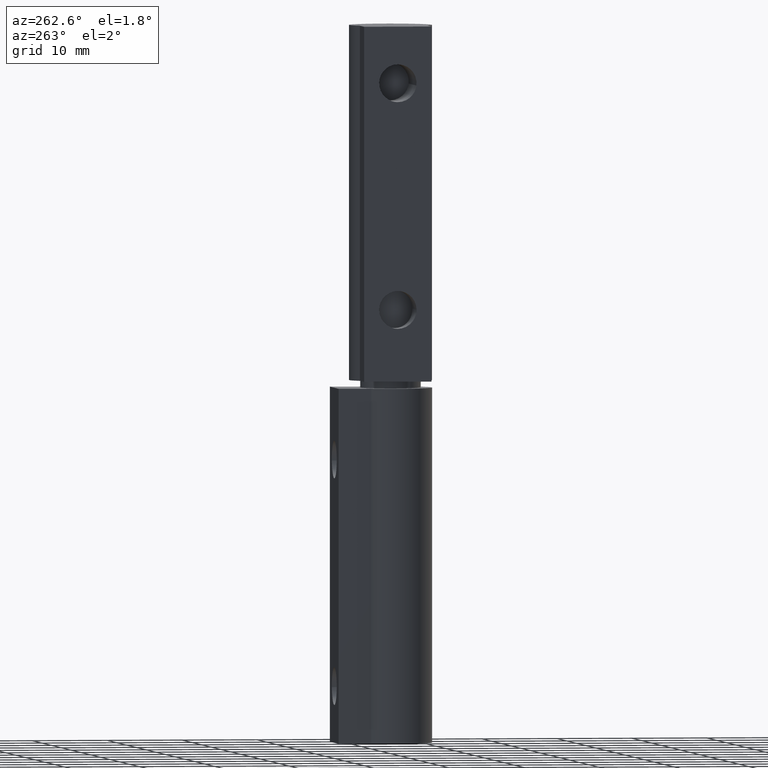
[diagram: clean part render]
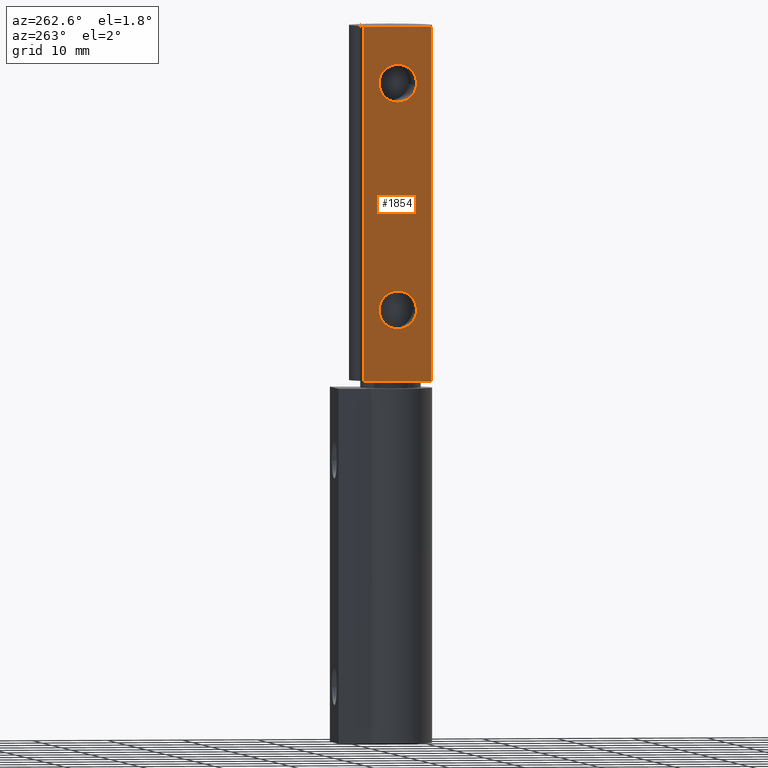
[diagram: same view with one face highlighted and labeled with its STEP entity id]
A machine part, auxiliary view. The second image highlights one B-rep face of the part: STEP entity #1854.
In plain terms, the highlighted face is a freeform B-spline surface patch.
Its self-contained STEP definition (entity closure, byte-faithful):
#1084=CARTESIAN_POINT('',(-7.500000356230890,-2.482523933808453,87.204918555247957));
#1085=VERTEX_POINT('',#1084);
#1091=CARTESIAN_POINT('',(-7.500000356230890,0.0,90.000004274769438));
#1092=VERTEX_POINT('',#1091);
#1093=CARTESIAN_POINT('',(-7.500000356230890,-2.482523933808453,87.204918555247957));
#1094=CARTESIAN_POINT('',(-7.500000356230890,-2.500000118743641,87.351943849742142));
#1095=CARTESIAN_POINT('',(-7.500000356230890,-2.500000118743640,87.500004156025796));
#1096=CARTESIAN_POINT('',(-7.500000356230891,-2.500000118743641,90.000004274769438));
#1097=CARTESIAN_POINT('',(-7.500000356230890,0.0,90.000004274769438));
#1105=(BOUNDED_CURVE()B_SPLINE_CURVE(2,(#1093,#1094,#1095,#1096,#1097),.UNSPECIFIED.,.F.,.U.)B_SPLINE_CURVE_WITH_KNOTS((3,2,3),(0.229562473499289,0.250000000000000,0.500000000000000),.UNSPECIFIED.)CURVE()GEOMETRIC_REPRESENTATION_ITEM()RATIONAL_B_SPLINE_CURVE((0.956026754155830,0.976055948314487,1.0,0.707106781186547,1.0))REPRESENTATION_ITEM(''));
#1106=EDGE_CURVE('',#1085,#1092,#1105,.T.);
#1108=CARTESIAN_POINT('',(-7.500000356230890,2.495337114558050,87.652625512419036));
#1109=VERTEX_POINT('',#1108);
#1110=CARTESIAN_POINT('',(-7.500000356230890,0.0,90.000004274769438));
#1111=CARTESIAN_POINT('',(-7.500000356230890,2.351765278387383,90.000004274769424));
#1112=CARTESIAN_POINT('',(-7.500000356230891,2.495337114558050,87.652625512419036));
#1120=(BOUNDED_CURVE()B_SPLINE_CURVE(2,(#1110,#1111,#1112),.UNSPECIFIED.,.F.,.U.)B_SPLINE_CURVE_WITH_KNOTS((3,3),(0.500000000000000,0.739332962199514),.UNSPECIFIED.)CURVE()GEOMETRIC_REPRESENTATION_ITEM()RATIONAL_B_SPLINE_CURVE((1.0,0.719603993332903,0.976072041582215))REPRESENTATION_ITEM(''));
#1121=EDGE_CURVE('',#1092,#1109,#1120,.T.);
#1195=CARTESIAN_POINT('',(-7.500000356230890,0.0,85.000004037282153));
#1196=VERTEX_POINT('',#1195);
#1197=CARTESIAN_POINT('',(-7.500000356230890,2.495337114558051,87.652625512419036));
#1198=CARTESIAN_POINT('',(-7.500000356230890,2.500000118743640,87.576386068208052));
#1199=CARTESIAN_POINT('',(-7.500000356230890,2.500000118743640,87.500004156025796));
#1200=CARTESIAN_POINT('',(-7.500000356230891,2.500000118743641,85.000004037282153));
#1201=CARTESIAN_POINT('',(-7.500000356230890,0.0,85.000004037282153));
#1209=(BOUNDED_CURVE()B_SPLINE_CURVE(2,(#1197,#1198,#1199,#1200,#1201),.UNSPECIFIED.,.F.,.U.)B_SPLINE_CURVE_WITH_KNOTS((3,2,3),(0.739332962199515,0.750000000000000,1.0),.UNSPECIFIED.)CURVE()GEOMETRIC_REPRESENTATION_ITEM()RATIONAL_B_SPLINE_CURVE((0.976072041582217,0.987502787853645,1.0,0.707106781186547,1.0))REPRESENTATION_ITEM(''));
#1210=EDGE_CURVE('',#1109,#1196,#1209,.T.);
#1212=CARTESIAN_POINT('',(-7.500000356230890,0.0,85.000004037282153));
#1213=CARTESIAN_POINT('',(-7.500000356230891,-2.220436420127107,85.000004037282153));
#1214=CARTESIAN_POINT('',(-7.500000356230890,-2.482523933808454,87.204918555247957));
#1222=(BOUNDED_CURVE()B_SPLINE_CURVE(2,(#1212,#1213,#1214),.UNSPECIFIED.,.F.,.U.)B_SPLINE_CURVE_WITH_KNOTS((3,3),(0.0,0.229562473499289),.UNSPECIFIED.)CURVE()GEOMETRIC_REPRESENTATION_ITEM()RATIONAL_B_SPLINE_CURVE((1.0,0.731050832872061,0.956026754155830))REPRESENTATION_ITEM(''));
#1223=EDGE_CURVE('',#1196,#1085,#1222,.T.);
#1286=CARTESIAN_POINT('',(-7.500000356230891,-2.499143431138589,57.565446530028048));
#1287=VERTEX_POINT('',#1286);
#1293=CARTESIAN_POINT('',(-7.500000356230890,0.0,60.000004274769452));
#1294=VERTEX_POINT('',#1293);
#1295=CARTESIAN_POINT('',(-7.500000356230891,-2.499143431138589,57.565446530028048));
#1296=CARTESIAN_POINT('',(-7.500000356230891,-2.435392292736959,60.000004274769445));
#1297=CARTESIAN_POINT('',(-7.500000356230890,0.0,60.000004274769452));
#1305=(BOUNDED_CURVE()B_SPLINE_CURVE(2,(#1295,#1296,#1297),.UNSPECIFIED.,.F.,.U.)B_SPLINE_CURVE_WITH_KNOTS((3,3),(0.254603306676391,0.500000000000000),.UNSPECIFIED.)CURVE()GEOMETRIC_REPRESENTATION_ITEM()RATIONAL_B_SPLINE_CURVE((0.989412390609045,0.712499890425082,1.0))REPRESENTATION_ITEM(''));
#1306=EDGE_CURVE('',#1287,#1294,#1305,.T.);
#1308=CARTESIAN_POINT('',(-7.500000356230890,2.499143431138589,57.434561782023572));
#1309=VERTEX_POINT('',#1308);
#1310=CARTESIAN_POINT('',(-7.500000356230890,0.0,60.000004274769452));
#1311=CARTESIAN_POINT('',(-7.500000356230891,2.500000118743641,60.000004274769445));
#1312=CARTESIAN_POINT('',(-7.500000356230890,2.500000118743640,57.500004156025803));
#1313=CARTESIAN_POINT('',(-7.500000356230890,2.500000118743640,57.467277361634999));
#1314=CARTESIAN_POINT('',(-7.500000356230890,2.499143431138590,57.434561782023565));
#1322=(BOUNDED_CURVE()B_SPLINE_CURVE(2,(#1310,#1311,#1312,#1313,#1314),.UNSPECIFIED.,.F.,.U.)B_SPLINE_CURVE_WITH_KNOTS((3,2,3),(0.500000000000000,0.750000000000000,0.754603306676391),.UNSPECIFIED.)CURVE()GEOMETRIC_REPRESENTATION_ITEM()RATIONAL_B_SPLINE_CURVE((1.0,0.707106781186547,1.0,0.994606890761466,0.989412390609045))REPRESENTATION_ITEM(''));
#1323=EDGE_CURVE('',#1294,#1309,#1322,.T.);
#1469=CARTESIAN_POINT('',(-7.500000356230890,0.0,55.000004037282160));
#1470=VERTEX_POINT('',#1469);
#1471=CARTESIAN_POINT('',(-7.500000356230890,2.499143431138590,57.434561782023572));
#1472=CARTESIAN_POINT('',(-7.500000356230891,2.435392292736957,55.000004037282167));
#1473=CARTESIAN_POINT('',(-7.500000356230890,0.0,55.000004037282160));
#1481=(BOUNDED_CURVE()B_SPLINE_CURVE(2,(#1471,#1472,#1473),.UNSPECIFIED.,.F.,.U.)B_SPLINE_CURVE_WITH_KNOTS((3,3),(0.754603306676391,1.0),.UNSPECIFIED.)CURVE()GEOMETRIC_REPRESENTATION_ITEM()RATIONAL_B_SPLINE_CURVE((0.989412390609045,0.712499890425082,1.0))REPRESENTATION_ITEM(''));
#1482=EDGE_CURVE('',#1309,#1470,#1481,.T.);
#1484=CARTESIAN_POINT('',(-7.500000356230890,0.0,55.000004037282160));
#1485=CARTESIAN_POINT('',(-7.500000356230891,-2.500000118743641,55.000004037282167));
#1486=CARTESIAN_POINT('',(-7.500000356230890,-2.500000118743640,57.500004156025803));
#1487=CARTESIAN_POINT('',(-7.500000356230890,-2.500000118743639,57.532730950416607));
#1488=CARTESIAN_POINT('',(-7.500000356230891,-2.499143431138589,57.565446530028048));
#1496=(BOUNDED_CURVE()B_SPLINE_CURVE(2,(#1484,#1485,#1486,#1487,#1488),.UNSPECIFIED.,.F.,.U.)B_SPLINE_CURVE_WITH_KNOTS((3,2,3),(0.0,0.250000000000000,0.254603306676391),.UNSPECIFIED.)CURVE()GEOMETRIC_REPRESENTATION_ITEM()RATIONAL_B_SPLINE_CURVE((1.0,0.707106781186547,1.0,0.994606890761466,0.989412390609045))REPRESENTATION_ITEM(''));
#1497=EDGE_CURVE('',#1470,#1287,#1496,.T.);
#1772=CARTESIAN_POINT('',(-7.500000356230901,4.500000213738470,95.000004512256695));
#1773=VERTEX_POINT('',#1772);
#1781=CARTESIAN_POINT('',(-7.500000356230901,-4.500000213738530,95.000004512256695));
#1782=VERTEX_POINT('',#1781);
#1783=CARTESIAN_POINT('',(-7.500000356230901,-4.500000213738530,95.000004512256695));
#1784=CARTESIAN_POINT('',(-7.500000356230901,4.500000213738470,95.000004512256695));
#1785=QUASI_UNIFORM_CURVE('',1,(#1783,#1784),.UNSPECIFIED.,.F.,.U.);
#1786=EDGE_CURVE('',#1782,#1773,#1785,.T.);
#1815=CARTESIAN_POINT('',(-7.500000356230901,-4.949550016521806,97.347657894371054));
#1816=CARTESIAN_POINT('',(-7.500000356230901,-4.949550016521806,45.652354360529323));
#1817=CARTESIAN_POINT('',(-7.500000356230901,4.949549775122924,97.347657894371054));
#1818=CARTESIAN_POINT('',(-7.500000356230901,4.949549775122924,45.652354360529323));
#1819=B_SPLINE_SURFACE_WITH_KNOTS('',1,1,((#1815,#1817),(#1816,#1818)),.UNSPECIFIED.,.F.,.F.,.U.,(2,2),(2,2),(0.0,51.695303533841738),(0.0,9.899099791644730),.UNSPECIFIED.);
#1820=ORIENTED_EDGE('',*,*,#1786,.T.);
#1821=CARTESIAN_POINT('',(-7.500000356230901,4.500000213738470,48.000002279877712));
#1822=VERTEX_POINT('',#1821);
#1823=CARTESIAN_POINT('',(-7.500000356230901,4.500000213738470,48.000002279877712));
#1824=CARTESIAN_POINT('',(-7.500000356230901,4.500000213738470,95.000004512256695));
#1825=QUASI_UNIFORM_CURVE('',1,(#1823,#1824),.UNSPECIFIED.,.F.,.U.);
#1826=EDGE_CURVE('',#1822,#1773,#1825,.T.);
#1827=ORIENTED_EDGE('',*,*,#1826,.F.);
#1828=CARTESIAN_POINT('',(-7.500000356230901,-4.500000213738530,48.000002279877712));
#1829=VERTEX_POINT('',#1828);
#1830=CARTESIAN_POINT('',(-7.500000356230901,-4.500000213738530,48.000002279877712));
#1831=CARTESIAN_POINT('',(-7.500000356230901,4.500000213738470,48.000002279877712));
#1832=QUASI_UNIFORM_CURVE('',1,(#1830,#1831),.UNSPECIFIED.,.F.,.U.);
#1833=EDGE_CURVE('',#1829,#1822,#1832,.T.);
#1834=ORIENTED_EDGE('',*,*,#1833,.F.);
#1835=CARTESIAN_POINT('',(-7.500000356230901,-4.500000213738530,48.000002279877712));
#1836=CARTESIAN_POINT('',(-7.500000356230901,-4.500000213738530,95.000004512256695));
#1837=QUASI_UNIFORM_CURVE('',1,(#1835,#1836),.UNSPECIFIED.,.F.,.U.);
#1838=EDGE_CURVE('',#1829,#1782,#1837,.T.);
#1839=ORIENTED_EDGE('',*,*,#1838,.T.);
#1840=EDGE_LOOP('',(#1820,#1827,#1834,#1839));
#1841=FACE_OUTER_BOUND('',#1840,.T.);
#1842=ORIENTED_EDGE('',*,*,#1323,.F.);
#1843=ORIENTED_EDGE('',*,*,#1306,.F.);
#1844=ORIENTED_EDGE('',*,*,#1497,.F.);
#1845=ORIENTED_EDGE('',*,*,#1482,.F.);
#1846=EDGE_LOOP('',(#1842,#1843,#1844,#1845));
#1847=FACE_BOUND('',#1846,.T.);
#1848=ORIENTED_EDGE('',*,*,#1121,.F.);
#1849=ORIENTED_EDGE('',*,*,#1106,.F.);
#1850=ORIENTED_EDGE('',*,*,#1223,.F.);
#1851=ORIENTED_EDGE('',*,*,#1210,.F.);
#1852=EDGE_LOOP('',(#1848,#1849,#1850,#1851));
#1853=FACE_BOUND('',#1852,.T.);
#1854=ADVANCED_FACE('',(#1841,#1847,#1853),#1819,.F.);